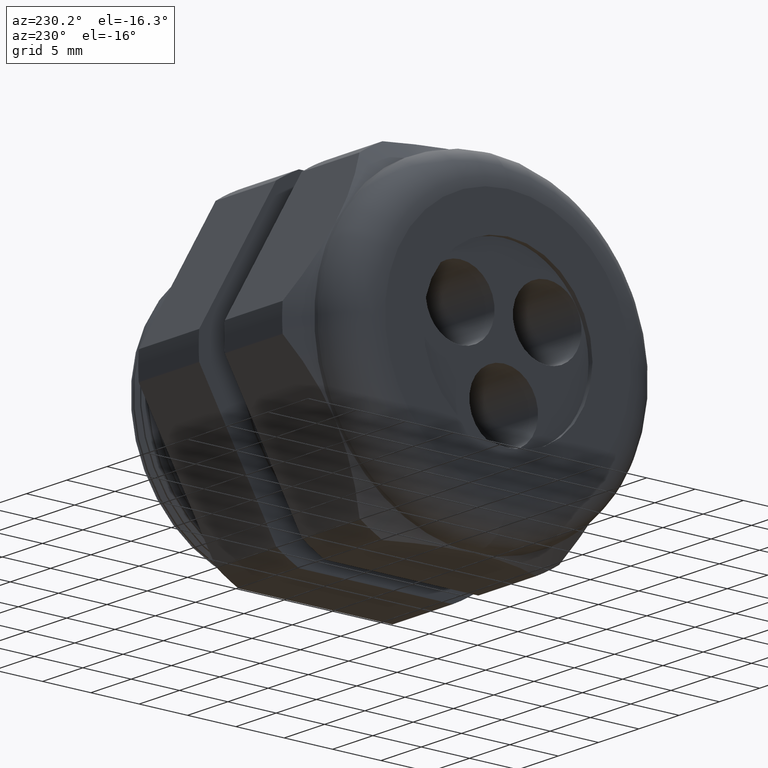
[diagram: clean part render]
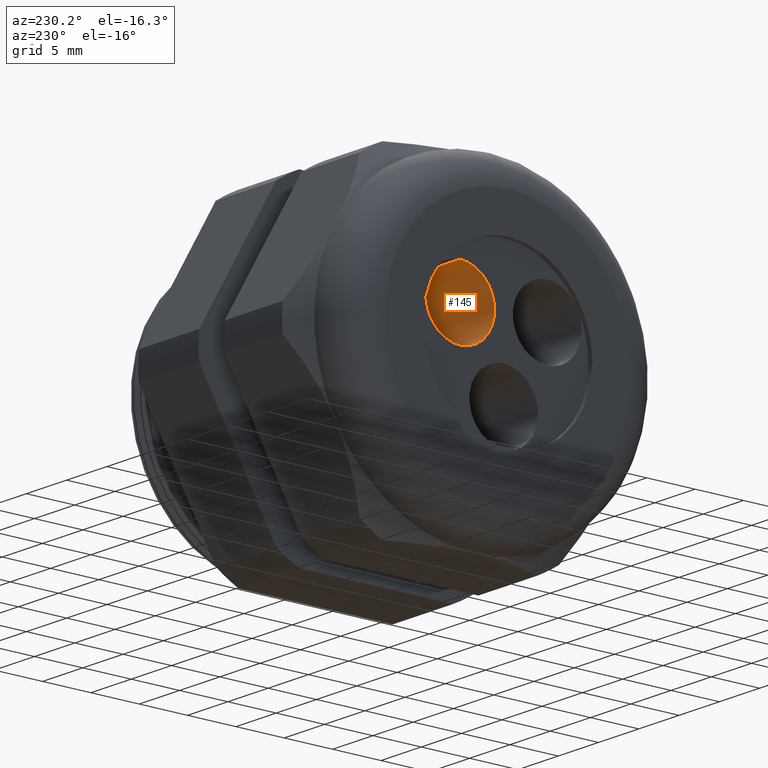
[diagram: same view with one face highlighted and labeled with its STEP entity id]
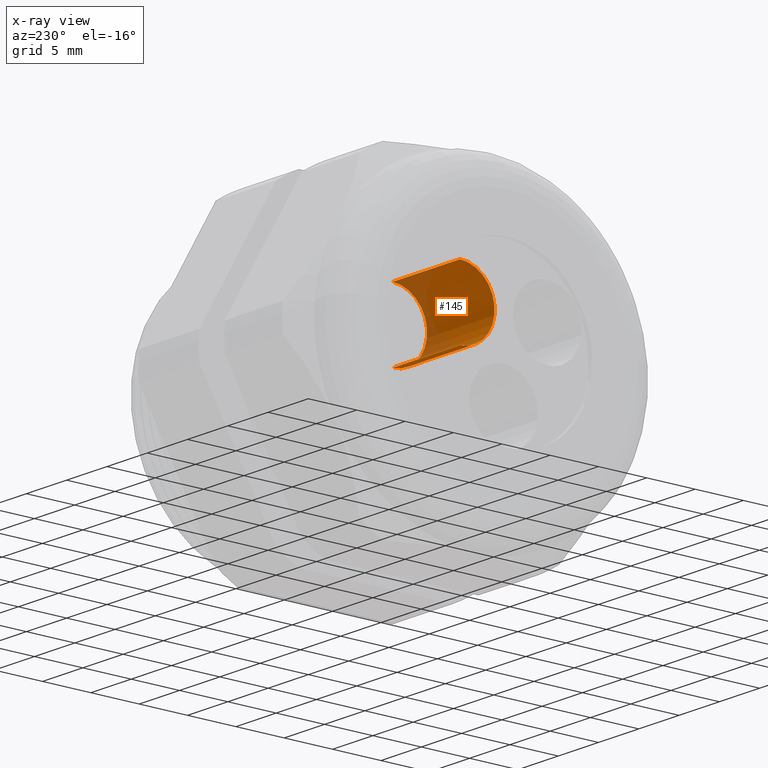
[diagram: x-ray of the same camera — body ghosted, the highlighted face saturated]
A machine part, auxiliary view. The second image highlights one B-rep face of the part: STEP entity #145.
The next image is the same camera in x-ray: the body ghosted, the highlighted face saturated — about 24% of this face is hidden behind the body in this view.
In plain terms, the highlighted cylindrical surface (partial cylindrical patch) has radius 3.556 mm, axis along (-1, 0, 0).
Its self-contained STEP definition (entity closure, byte-faithful):
#121 = ORIENTED_EDGE ( 'NONE', *, *, #122, .F. ) ;
#122 = EDGE_CURVE ( 'NONE', #123, #142, #1151, .T. ) ;
#123 = VERTEX_POINT ( 'NONE', #1146 ) ;
#142 = VERTEX_POINT ( 'NONE', #1176 ) ;
#143 = ORIENTED_EDGE ( 'NONE', *, *, #144, .T. ) ;
#144 = EDGE_CURVE ( 'NONE', #123, #152, #1174, .T. ) ;
#145 = ADVANCED_FACE ( 'NONE', ( #1235 ), #1234, .F. ) ;
#146 = EDGE_LOOP ( 'NONE', ( #121, #143, #153, #158 ) ) ;
#150 = EDGE_CURVE ( 'NONE', #152, #151, #1223, .T. ) ;
#151 = VERTEX_POINT ( 'NONE', #1218 ) ;
#152 = VERTEX_POINT ( 'NONE', #1217 ) ;
#153 = ORIENTED_EDGE ( 'NONE', *, *, #150, .T. ) ;
#158 = ORIENTED_EDGE ( 'NONE', *, *, #159, .F. ) ;
#159 = EDGE_CURVE ( 'NONE', #142, #151, #1210, .T. ) ;
#1146 = CARTESIAN_POINT ( 'NONE',  ( -0.8999999999999998000, 0.1770502335496915400, -0.03778000000000168700 ) ) ;
#1147 = DIRECTION ( 'NONE',  ( 0.0000000000000000000, -0.8660254037844432600, -0.4999999999999919500 ) ) ;
#1148 = DIRECTION ( 'NONE',  ( -1.000000000000000000, 0.0000000000000000000, 0.0000000000000000000 ) ) ;
#1149 = CARTESIAN_POINT ( 'NONE',  ( -0.8999999999999998000, 0.1770502335496914900, 0.1022199999999983300 ) ) ;
#1150 = AXIS2_PLACEMENT_3D ( 'NONE', #1149, #1148, #1147 ) ;
#1151 = CIRCLE ( 'NONE', #1150, 0.1400000000000000100 ) ;
#1171 = DIRECTION ( 'NONE',  ( -1.000000000000000000, 0.0000000000000000000, 0.0000000000000000000 ) ) ;
#1172 = VECTOR ( 'NONE', #1171, 39.37007874015748100 ) ;
#1173 = CARTESIAN_POINT ( 'NONE',  ( -0.8999999999999998000, 0.1770502335496915400, -0.03778000000000168700 ) ) ;
#1174 = LINE ( 'NONE', #1173, #1172 ) ;
#1176 = CARTESIAN_POINT ( 'NONE',  ( -0.8999999999999998000, 0.1770502335496914900, 0.2422199999999983300 ) ) ;
#1207 = DIRECTION ( 'NONE',  ( -1.000000000000000000, 0.0000000000000000000, 0.0000000000000000000 ) ) ;
#1208 = VECTOR ( 'NONE', #1207, 39.37007874015748100 ) ;
#1209 = CARTESIAN_POINT ( 'NONE',  ( -0.8999999999999998000, 0.1770502335496914900, 0.2422199999999983300 ) ) ;
#1210 = LINE ( 'NONE', #1209, #1208 ) ;
#1217 = CARTESIAN_POINT ( 'NONE',  ( -1.229999999999999800, 0.1770502335496915400, -0.03778000000000168700 ) ) ;
#1218 = CARTESIAN_POINT ( 'NONE',  ( -1.229999999999999800, 0.1770502335496914900, 0.2422199999999983300 ) ) ;
#1219 = DIRECTION ( 'NONE',  ( 0.0000000000000000000, -0.8660254037844432600, -0.4999999999999919500 ) ) ;
#1220 = DIRECTION ( 'NONE',  ( -1.000000000000000000, 0.0000000000000000000, 0.0000000000000000000 ) ) ;
#1221 = CARTESIAN_POINT ( 'NONE',  ( -1.229999999999999800, 0.1770502335496914900, 0.1022199999999983300 ) ) ;
#1222 = AXIS2_PLACEMENT_3D ( 'NONE', #1221, #1220, #1219 ) ;
#1223 = CIRCLE ( 'NONE', #1222, 0.1400000000000000100 ) ;
#1229 = DIRECTION ( 'NONE',  ( 0.0000000000000000000, 0.0000000000000000000, 1.000000000000000000 ) ) ;
#1230 = DIRECTION ( 'NONE',  ( -1.000000000000000000, 0.0000000000000000000, 0.0000000000000000000 ) ) ;
#1231 = AXIS2_PLACEMENT_3D ( 'NONE', #1233, #1230, #1229 ) ;
#1233 = CARTESIAN_POINT ( 'NONE',  ( -0.8999999999999998000, 0.1770502335496914900, 0.1022199999999983300 ) ) ;
#1234 = CYLINDRICAL_SURFACE ( 'NONE', #1231, 0.1400000000000000100 ) ;
#1235 = FACE_OUTER_BOUND ( 'NONE', #146, .T. ) ;